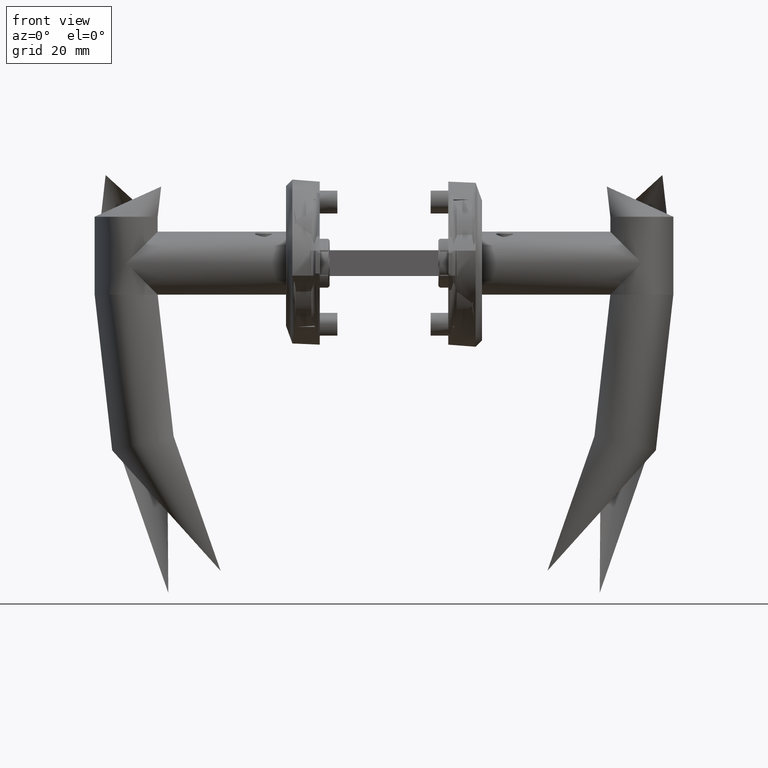
[diagram: clean part render]
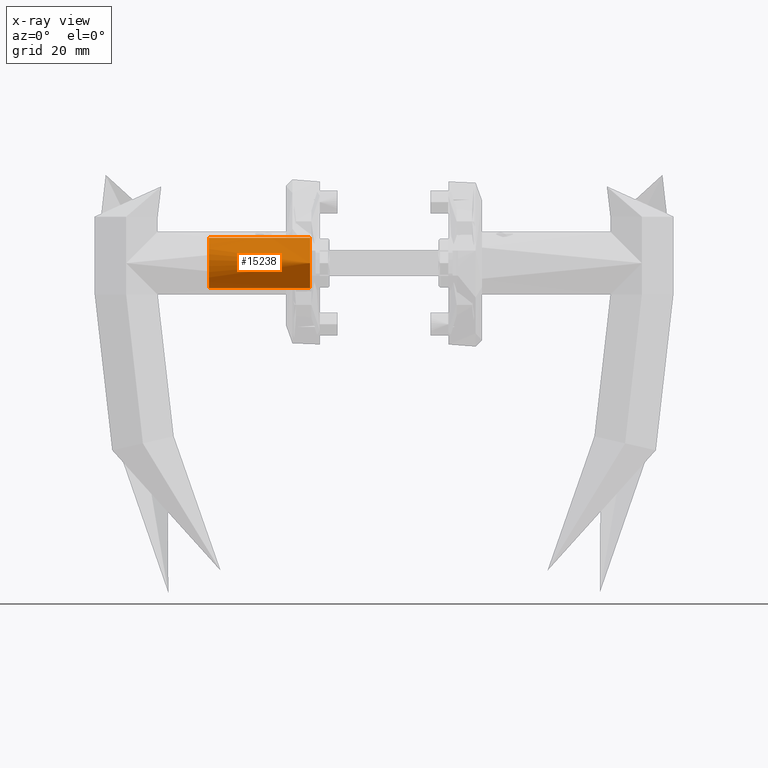
[diagram: x-ray — body ghosted, one internal face saturated and labeled with its STEP entity id]
A machine part, front view, then the same camera in x-ray: the body is ghosted and one INTERNAL B-rep face — a face not visible from any outside direction — is saturated and labeled: STEP entity #15238.
In plain terms, the highlighted cylindrical surface (bore or boss wall) has radius 7.85 mm, axis along (1, -0, 0).
Its self-contained STEP definition (entity closure, byte-faithful):
#273 = CARTESIAN_POINT ( 'NONE',  ( -9.800000000000000700, -4.065758146820641600E-017, 24.50000000000003900 ) ) ;
#697 = EDGE_LOOP ( 'NONE', ( #9286 ) ) ;
#727 = CARTESIAN_POINT ( 'NONE',  ( -2.332032967751787000, 2.419320908842565100, 6.849024537163264100 ) ) ;
#789 = CARTESIAN_POINT ( 'NONE',  ( -2.178193592102577500, -1.882711239978615700, 5.847114561690551300 ) ) ;
#864 = CARTESIAN_POINT ( 'NONE',  ( -1.975360598605850900, 0.6506773914354806500, 9.919382335193818200 ) ) ;
#998 = CARTESIAN_POINT ( 'NONE',  ( -2.332127616856064700, -2.419613174249177300, 8.150025874492422800 ) ) ;
#1104 = VERTEX_POINT ( 'NONE', #7207 ) ;
#1771 = CARTESIAN_POINT ( 'NONE',  ( -9.800000000000000700, 0.0000000000000000000, -7.000000000000020400 ) ) ;
#2268 = CARTESIAN_POINT ( 'NONE',  ( -1.975611367669901400, 0.6539639519109022900, 5.081424318018345200 ) ) ;
#2287 = VERTEX_POINT ( 'NONE', #10125 ) ;
#2336 = CARTESIAN_POINT ( 'NONE',  ( -2.124991034199240400, 1.652487650323280200, 5.616965081919939700 ) ) ;
#2408 = CARTESIAN_POINT ( 'NONE',  ( -2.331953651937852100, 2.419078772989926100, 8.152085949960659100 ) ) ;
#2477 = CARTESIAN_POINT ( 'NONE',  ( -2.204687313181858100, 1.997229744117844400, 9.038161069933453400 ) ) ;
#2570 = DIRECTION ( 'NONE',  ( 1.972152263052526900E-031, 3.889170968374258800E-034, 1.000000000000000000 ) ) ;
#2586 = AXIS2_PLACEMENT_3D ( 'NONE', #273, #13776, #3475 ) ;
#3475 = DIRECTION ( 'NONE',  ( -1.000000000000000000, 0.0000000000000000000, 0.0000000000000000000 ) ) ;
#3678 = CARTESIAN_POINT ( 'NONE',  ( -2.205139297483599900, 1.987296848023905300, 5.974557873437204200 ) ) ;
#3741 = CARTESIAN_POINT ( 'NONE',  ( -1.990259856097236900, -0.8084216882191687100, 5.128687615706726700 ) ) ;
#3808 = CARTESIAN_POINT ( 'NONE',  ( -2.353057057999240300, -2.483281829276062300, 7.168260144729441800 ) ) ;
#3935 = CARTESIAN_POINT ( 'NONE',  ( -1.950021670309642700, 0.1649011203877647500, 5.000068044777508500 ) ) ;
#4095 = DIRECTION ( 'NONE',  ( 1.000000000000000000, 0.0000000000000000000, 0.0000000000000000000 ) ) ;
#5192 = CARTESIAN_POINT ( 'NONE',  ( -2.358767590165172100, 2.500112044877544900, 7.337458955391054100 ) ) ;
#5379 = CARTESIAN_POINT ( 'NONE',  ( -2.098814674166302300, 1.527437675453567200, 5.514210146021983200 ) ) ;
#5418 = EDGE_CURVE ( 'NONE', #1104, #1104, #7115, .T. ) ;
#5590 = CARTESIAN_POINT ( 'NONE',  ( -2.027775020038262700, -1.112723584859274700, 9.744680884073282800 ) ) ;
#5728 = CARTESIAN_POINT ( 'NONE',  ( -2.353272379704622400, -2.483927050670776000, 7.827365174470021000 ) ) ;
#6262 = EDGE_LOOP ( 'NONE', ( #14517 ) ) ;
#6918 = CARTESIAN_POINT ( 'NONE',  ( -2.254496921815408500, -2.167170158535898200, 6.243169797845408400 ) ) ;
#6919 = B_SPLINE_CURVE_WITH_KNOTS ( 'NONE', 3,
 ( #11506, #11368, #11240, #864, #12772, #17420, #14239, #8372, #16043, #2477, #6984, #17546, #2408, #18927, #15912, #5192, #8507, #727, #17359, #14446, #12902, #3678, #8311, #2336, #5379, #15779, #12976, #17290, #2268, #8242, #3935, #9759, #18800, #15979, #3741, #19062, #14310, #9883, #18863, #789, #9824, #6918, #11308, #12832, #17484, #3808, #14374, #8704, #5728, #998, #8636, #14838, #7049, #19135, #10083, #17886, #5590, #16241, #13102, #17818, #13042, #11575 ),
 .UNSPECIFIED., .T., .F.,
 ( 4, 2, 2, 2, 2, 2, 2, 2, 2, 2, 2, 2, 2, 2, 2, 2, 2, 2, 2, 2, 2, 2, 2, 2, 2, 2, 2, 2, 2, 2, 4 ),
 ( 0.0000000000000000000, 0.0004916676346564888100, 0.0009833352693129776300, 0.001475002903969466300, 0.001966670538625955300, 0.002950005807938932700, 0.003441673442595424400, 0.003933341077251915700, 0.004425008711908407500, 0.004916676346564898300, 0.005408343981221390100, 0.005900011615877881000, 0.006391679250534372700, 0.006883346885190864400, 0.007375014519847355300, 0.007866682154503847100, 0.008358349789160338800, 0.008850017423816832300, 0.009341685058473322300, 0.009833352693129815800, 0.01032502032778630800, 0.01081668796244280100, 0.01130835559709929300, 0.01180002323175578400, 0.01229169086641227600, 0.01278335850106877000, 0.01376669377038175800, 0.01425836140503825000, 0.01475002903969474200, 0.01524169667435123400, 0.01573336430900772500 ),
 .UNSPECIFIED. ) ;
#6984 = CARTESIAN_POINT ( 'NONE',  ( -2.258489346735790300, 2.182940008413204700, 8.761182814414100400 ) ) ;
#7049 = CARTESIAN_POINT ( 'NONE',  ( -2.204762430838687100, -1.997535714934928400, 9.037818931509360000 ) ) ;
#7115 = CIRCLE ( 'NONE', #15841, 7.849999999999999600 ) ;
#7207 = CARTESIAN_POINT ( 'NONE',  ( -1.950000000000002200, -4.065758146820641600E-017, 24.50000000000003900 ) ) ;
#7309 = EDGE_LOOP ( 'NONE', ( #18214 ) ) ;
#8230 = VERTEX_POINT ( 'NONE', #14617 ) ;
#8242 = CARTESIAN_POINT ( 'NONE',  ( -1.955297538070217600, 0.3307107556887429200, 5.016492887881387500 ) ) ;
#8311 = CARTESIAN_POINT ( 'NONE',  ( -2.178237088088307100, 1.882872320206644200, 5.847327085301089700 ) ) ;
#8372 = CARTESIAN_POINT ( 'NONE',  ( -2.098619396321423500, 1.526494297239595800, 9.486554311812357200 ) ) ;
#8507 = CARTESIAN_POINT ( 'NONE',  ( -2.353169705818936000, 2.483619098085722700, 7.170577947304399100 ) ) ;
#8636 = CARTESIAN_POINT ( 'NONE',  ( -2.316337309387354300, -2.370987707599415900, 8.309321842416748500 ) ) ;
#8704 = CARTESIAN_POINT ( 'NONE',  ( -2.358739951104626500, -2.500029776963276400, 7.664322337496996900 ) ) ;
#9286 = ORIENTED_EDGE ( 'NONE', *, *, #5418, .F. ) ;
#9742 = FACE_OUTER_BOUND ( 'NONE', #697, .T. ) ;
#9759 = CARTESIAN_POINT ( 'NONE',  ( -1.949978466111728300, -0.1628314269536488300, 4.999932383585611500 ) ) ;
#9824 = CARTESIAN_POINT ( 'NONE',  ( -2.205016718890033400, -1.986824642136729900, 5.973967072932334000 ) ) ;
#9883 = CARTESIAN_POINT ( 'NONE',  ( -2.098649725234990300, -1.526616055230516600, 5.513571094196456600 ) ) ;
#10083 = CARTESIAN_POINT ( 'NONE',  ( -2.098586111927947400, -1.526309635492221400, 9.486678156997692600 ) ) ;
#10125 = CARTESIAN_POINT ( 'NONE',  ( -1.950000000000002200, 0.0000000000000000000, -7.000000000000020400 ) ) ;
#10373 = CIRCLE ( 'NONE', #17149, 7.849999999999999600 ) ;
#10955 = DIRECTION ( 'NONE',  ( 1.972152263052526900E-031, 3.889170968374258800E-034, 1.000000000000000000 ) ) ;
#11240 = CARTESIAN_POINT ( 'NONE',  ( -1.955276754880815200, 0.3296665543572496200, 9.983568383296784500 ) ) ;
#11308 = CARTESIAN_POINT ( 'NONE',  ( -2.277493905325218100, -2.244724847799441500, 6.387186893733569600 ) ) ;
#11368 = CARTESIAN_POINT ( 'NONE',  ( -1.949999999999990900, 0.1663271035317414000, 10.00000000000000500 ) ) ;
#11506 = CARTESIAN_POINT ( 'NONE',  ( -1.949999999999991300, 1.490777987167568600E-016, 10.00000000000000500 ) ) ;
#11575 = CARTESIAN_POINT ( 'NONE',  ( -1.949999999999991300, 1.490777987167568600E-016, 10.00000000000000500 ) ) ;
#12255 = CYLINDRICAL_SURFACE ( 'NONE', #2586, 7.849999999999997900 ) ;
#12772 = CARTESIAN_POINT ( 'NONE',  ( -1.990422550186743900, 0.8100577186500035300, 9.870783678293340900 ) ) ;
#12832 = CARTESIAN_POINT ( 'NONE',  ( -2.316444650212627000, -2.371347067262873600, 6.691386533385488300 ) ) ;
#12902 = CARTESIAN_POINT ( 'NONE',  ( -2.254673965305798300, 2.167789861347157600, 6.244209587272366400 ) ) ;
#12976 = CARTESIAN_POINT ( 'NONE',  ( -2.027546660310505900, 1.111073571916670700, 5.254535162568858600 ) ) ;
#13042 = CARTESIAN_POINT ( 'NONE',  ( -1.949999999999992000, -0.1663271035317423200, 10.00000000000000500 ) ) ;
#13102 = CARTESIAN_POINT ( 'NONE',  ( -1.975401069011181600, -0.6512087187244561800, 9.919252164818811200 ) ) ;
#13519 = FACE_BOUND ( 'NONE', #6262, .T. ) ;
#13776 = DIRECTION ( 'NONE',  ( -1.972152263052526900E-031, -3.889170968374258800E-034, -1.000000000000000000 ) ) ;
#14239 = CARTESIAN_POINT ( 'NONE',  ( -2.049835540205384700, 1.255547246565431800, 9.667990771411917100 ) ) ;
#14310 = CARTESIAN_POINT ( 'NONE',  ( -2.049972585820546200, -1.256354931608746800, 5.332506363625992800 ) ) ;
#14374 = CARTESIAN_POINT ( 'NONE',  ( -2.358719915615797600, -2.499970141168992300, 7.334772854630333700 ) ) ;
#14446 = CARTESIAN_POINT ( 'NONE',  ( -2.277701288959405700, 2.245415541473274200, 6.388600133605322600 ) ) ;
#14517 = ORIENTED_EDGE ( 'NONE', *, *, #15525, .T. ) ;
#14617 = CARTESIAN_POINT ( 'NONE',  ( -1.949999999999991700, 0.0000000000000000000, 10.00000000000000500 ) ) ;
#14838 = CARTESIAN_POINT ( 'NONE',  ( -2.258555993685987100, -2.183181670281117100, 8.760974231041244000 ) ) ;
#15177 = FACE_OUTER_BOUND ( 'NONE', #7309, .T. ) ;
#15238 = ADVANCED_FACE ( 'NONE', ( #13519, #15177, #9742 ), #12255, .T. ) ;
#15525 = EDGE_CURVE ( 'NONE', #8230, #8230, #6919, .T. ) ;
#15779 = CARTESIAN_POINT ( 'NONE',  ( -2.050145285200960300, 1.257407322524555400, 5.333123441028845100 ) ) ;
#15841 = AXIS2_PLACEMENT_3D ( 'NONE', #17442, #2570, #4095 ) ;
#15912 = CARTESIAN_POINT ( 'NONE',  ( -2.358691909127924400, 2.499886779604182200, 7.665969627596670200 ) ) ;
#15979 = CARTESIAN_POINT ( 'NONE',  ( -1.975438278726480100, -0.6520438707957764100, 5.080865027122197100 ) ) ;
#16043 = CARTESIAN_POINT ( 'NONE',  ( -2.125298850725605400, 1.653862943130006900, 9.381742250496415600 ) ) ;
#16241 = CARTESIAN_POINT ( 'NONE',  ( -1.990504578532326800, -0.8108120482076890400, 9.870512575395315100 ) ) ;
#17066 = DIRECTION ( 'NONE',  ( 1.000000000000000000, 0.0000000000000000000, 0.0000000000000000000 ) ) ;
#17149 = AXIS2_PLACEMENT_3D ( 'NONE', #1771, #10955, #17066 ) ;
#17290 = CARTESIAN_POINT ( 'NONE',  ( -1.990421415154604700, 0.8099368660496031300, 5.129219729421328600 ) ) ;
#17359 = CARTESIAN_POINT ( 'NONE',  ( -2.316578114705567100, 2.371764267103499500, 6.692637083956150900 ) ) ;
#17420 = CARTESIAN_POINT ( 'NONE',  ( -2.027718302237830400, 1.112353659052460800, 9.744878191350068200 ) ) ;
#17442 = CARTESIAN_POINT ( 'NONE',  ( -9.800000000000000700, -4.065758146820641600E-017, 24.50000000000003900 ) ) ;
#17484 = CARTESIAN_POINT ( 'NONE',  ( -2.331899841439351000, -2.418910466870163800, 6.847610447314208300 ) ) ;
#17546 = CARTESIAN_POINT ( 'NONE',  ( -2.316176063174192600, 2.370476067375543400, 8.310737631373985600 ) ) ;
#17818 = CARTESIAN_POINT ( 'NONE',  ( -1.955280179655499500, -0.3298365753949357700, 9.983558267054551300 ) ) ;
#17886 = CARTESIAN_POINT ( 'NONE',  ( -2.049868104465798700, -1.255727908668480100, 9.667869604537882500 ) ) ;
#18214 = ORIENTED_EDGE ( 'NONE', *, *, #19467, .T. ) ;
#18800 = CARTESIAN_POINT ( 'NONE',  ( -1.955152015191744100, -0.3275476067856521500, 5.016033858577813500 ) ) ;
#18863 = CARTESIAN_POINT ( 'NONE',  ( -2.124852006187538700, -1.651858893999303700, 5.616388023070401300 ) ) ;
#18927 = CARTESIAN_POINT ( 'NONE',  ( -2.353210535344120400, 2.483744156676579900, 7.828896883903582600 ) ) ;
#19062 = CARTESIAN_POINT ( 'NONE',  ( -2.027393085559541200, -1.110030853112577300, 5.254003660950457900 ) ) ;
#19135 = CARTESIAN_POINT ( 'NONE',  ( -2.125309370236192900, -1.653917895037599900, 9.381705236244959800 ) ) ;
#19467 = EDGE_CURVE ( 'NONE', #2287, #2287, #10373, .T. ) ;